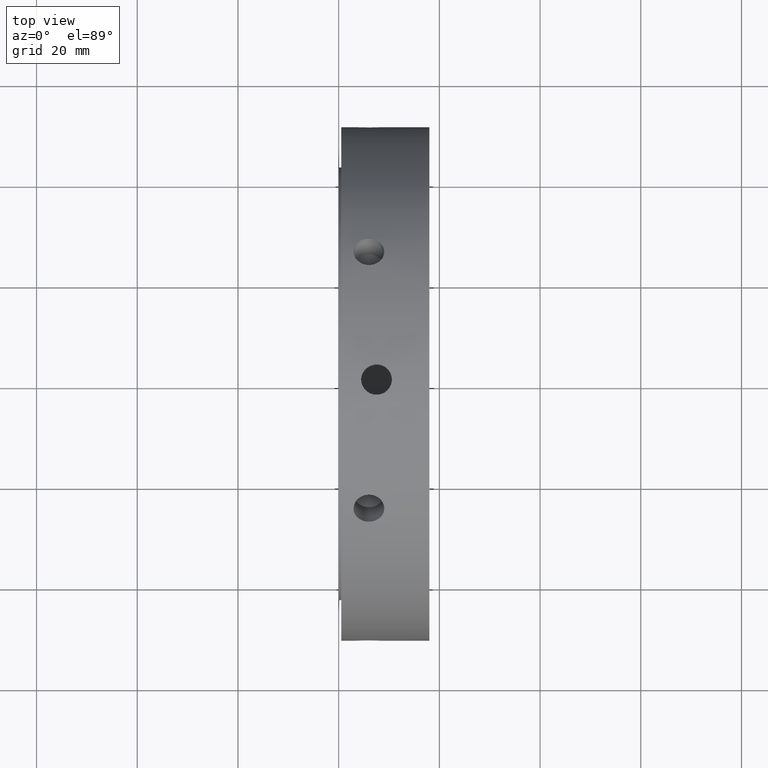
[diagram: clean part render]
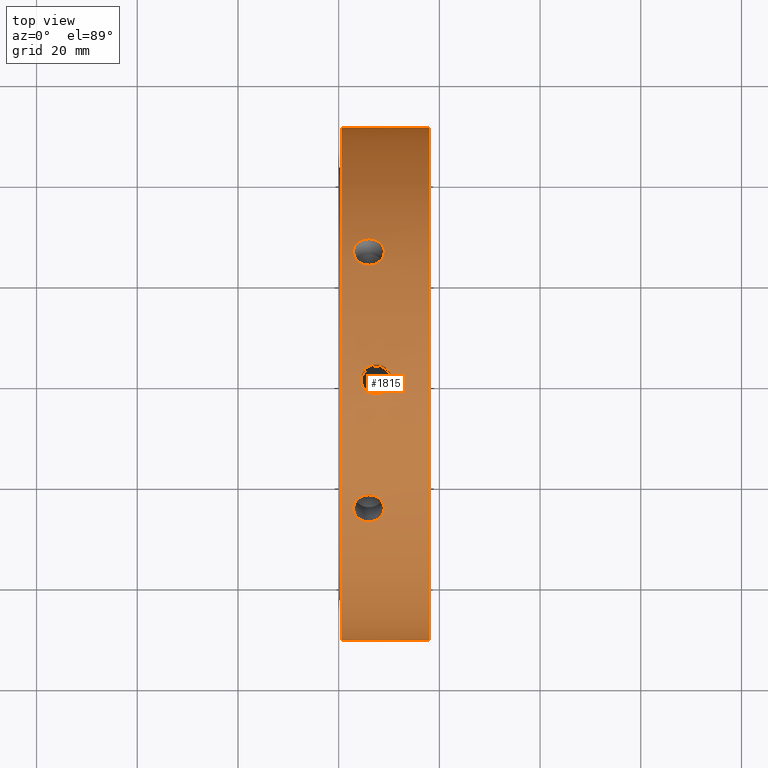
[diagram: same view with one face highlighted and labeled with its STEP entity id]
A machine part, top view. The second image highlights one B-rep face of the part: STEP entity #1815.
In plain terms, the highlighted cylindrical surface (bore or boss wall) has radius 51 mm, axis along (1, 0, 0).
Its self-contained STEP definition (entity closure, byte-faithful):
#534=CARTESIAN_POINT('',(2.949999999999988,25.500000000000046,44.167295593006351));
#535=VERTEX_POINT('',#534);
#536=CARTESIAN_POINT('',(9.049999999999987,25.50000000000005,44.167295593006351));
#537=VERTEX_POINT('',#536);
#538=CARTESIAN_POINT('',(2.949999999999988,25.500000000000043,44.167295593006351));
#539=CARTESIAN_POINT('',(2.949999999999988,25.831742092206099,43.975764206769661));
#540=CARTESIAN_POINT('',(3.026573888292848,26.183163011110935,43.76737609812119));
#541=CARTESIAN_POINT('',(3.337866047995538,26.825318756831944,43.376762320120505));
#542=CARTESIAN_POINT('',(3.572579263308811,27.116183112839359,43.194745601685355));
#543=CARTESIAN_POINT('',(4.114069488624895,27.573667949133934,42.904152131207724));
#544=CARTESIAN_POINT('',(4.456973716481083,27.770831251015345,42.776222735043881));
#545=CARTESIAN_POINT('',(5.208403624468287,28.031805414916722,42.605659073276421));
#546=CARTESIAN_POINT('',(5.616937061746627,28.095736145629946,42.563242480280365));
#547=CARTESIAN_POINT('',(6.383062938253348,28.095736145629946,42.563242480280365));
#548=CARTESIAN_POINT('',(6.791596375531684,28.031805414916722,42.605659073276421));
#549=CARTESIAN_POINT('',(7.54302628351889,27.770831251015345,42.776222735043881));
#550=CARTESIAN_POINT('',(7.885930511375078,27.573667949133934,42.904152131207724));
#551=CARTESIAN_POINT('',(8.427420736691161,27.116183112839359,43.194745601685355));
#552=CARTESIAN_POINT('',(8.662133952004437,26.825318756831944,43.376762320120505));
#553=CARTESIAN_POINT('',(8.973426111707127,26.183163011110935,43.76737609812119));
#554=CARTESIAN_POINT('',(9.049999999999987,25.831742092206099,43.975764206769661));
#555=CARTESIAN_POINT('',(9.049999999999987,25.500000000000043,44.167295593006351));
#556=B_SPLINE_CURVE_WITH_KNOTS('',3,(#538,#539,#540,#541,#542,#543,#544,#545,#546,#547,#548,#549,#550,#551,#552,#553,#554,#555),.UNSPECIFIED.,.F.,.U.,(4,2,2,2,2,2,2,2,4),(0.459675426436053,0.57459425817807,0.689513089920088,0.804431971396096,0.919350852872105,1.034269734348113,1.149188615824121,1.264107447566139,1.379026279308156),.UNSPECIFIED.);
#557=EDGE_CURVE('',#535,#537,#556,.T.);
#559=CARTESIAN_POINT('',(9.049999999999987,25.500000000000043,44.167295593006344));
#560=CARTESIAN_POINT('',(9.049999999999988,25.168257907793983,44.358826979243048));
#561=CARTESIAN_POINT('',(8.973426111707131,24.812078052405411,44.558972368111675));
#562=CARTESIAN_POINT('',(8.662133952004439,24.152718724728082,44.919788668091869));
#563=CARTESIAN_POINT('',(8.427420736691163,23.849655444646061,45.080676230232122));
#564=CARTESIAN_POINT('',(7.885930511375079,23.369251698891258,45.331572985070565));
#565=CARTESIAN_POINT('',(7.543026283518891,23.159879940981863,45.438356715111972));
#566=CARTESIAN_POINT('',(6.791596375531688,22.881680394978062,45.579085139898233));
#567=CARTESIAN_POINT('',(6.383062938253349,22.812981182544874,45.61324248028037));
#568=CARTESIAN_POINT('',(5.999999999999988,22.812981182544874,45.61324248028037));
#569=CARTESIAN_POINT('',(5.616937061746627,22.812981182544874,45.61324248028037));
#570=CARTESIAN_POINT('',(5.208403624468289,22.881680394978055,45.579085139898233));
#571=CARTESIAN_POINT('',(4.456973716481086,23.15987994098186,45.438356715111972));
#572=CARTESIAN_POINT('',(4.114069488624898,23.369251698891258,45.331572985070565));
#573=CARTESIAN_POINT('',(3.572579263308813,23.849655444646061,45.080676230232122));
#574=CARTESIAN_POINT('',(3.337866047995539,24.152718724728079,44.919788668091869));
#575=CARTESIAN_POINT('',(3.026573888292846,24.812078052405408,44.558972368111675));
#576=CARTESIAN_POINT('',(2.949999999999987,25.168257907793986,44.358826979243048));
#577=CARTESIAN_POINT('',(2.949999999999987,25.500000000000046,44.167295593006344));
#578=B_SPLINE_CURVE_WITH_KNOTS('',3,(#559,#560,#561,#562,#563,#564,#565,#566,#567,#568,#569,#570,#571,#572,#573,#574,#575,#576,#577),.UNSPECIFIED.,.F.,.U.,(4,2,2,2,3,2,2,2,4),(1.379026279308156,1.493945111050175,1.608863942792193,1.723782824268201,1.838701705744209,1.953620587220217,2.068539468696225,2.183458300438244,2.298377132180262),.UNSPECIFIED.);
#579=EDGE_CURVE('',#537,#535,#578,.T.);
#646=CARTESIAN_POINT('',(2.949999999999988,51.000000000000007,-3.397282E-014));
#647=VERTEX_POINT('',#646);
#648=CARTESIAN_POINT('',(9.049999999999987,51.000000000000007,-3.108624E-014));
#649=VERTEX_POINT('',#648);
#650=CARTESIAN_POINT('',(2.949999999999988,51.0,-2.838008E-014));
#651=CARTESIAN_POINT('',(2.949999999999988,51.0,-0.383062772473422));
#652=CARTESIAN_POINT('',(3.026573888292847,50.995241063516261,-0.791596269990509));
#653=CARTESIAN_POINT('',(3.337866047995539,50.978037481559959,-1.543026347971394));
#654=CARTESIAN_POINT('',(3.572579263308811,50.965838557485348,-1.885930628546793));
#655=CARTESIAN_POINT('',(4.114069488624896,50.942919648025118,-2.427420853862877));
#656=CARTESIAN_POINT('',(4.456973716481084,50.93071119199714,-2.662133980068119));
#657=CARTESIAN_POINT('',(5.208403624468288,50.913485809894709,-2.973426066621841));
#658=CARTESIAN_POINT('',(5.616937061746627,50.908717328174752,-3.050000000000028));
#659=CARTESIAN_POINT('',(6.383062938253348,50.908717328174752,-3.050000000000028));
#660=CARTESIAN_POINT('',(6.791596375531688,50.913485809894709,-2.973426066621841));
#661=CARTESIAN_POINT('',(7.543026283518891,50.93071119199714,-2.662133980068119));
#662=CARTESIAN_POINT('',(7.885930511375078,50.942919648025118,-2.427420853862877));
#663=CARTESIAN_POINT('',(8.427420736691163,50.965838557485348,-1.885930628546793));
#664=CARTESIAN_POINT('',(8.662133952004435,50.978037481559959,-1.543026347971394));
#665=CARTESIAN_POINT('',(8.973426111707127,50.995241063516261,-0.791596269990509));
#666=CARTESIAN_POINT('',(9.049999999999988,51.0,-0.383062772473423));
#667=CARTESIAN_POINT('',(9.049999999999988,51.0,-2.955969E-014));
#668=B_SPLINE_CURVE_WITH_KNOTS('',3,(#650,#651,#652,#653,#654,#655,#656,#657,#658,#659,#660,#661,#662,#663,#664,#665,#666,#667),.UNSPECIFIED.,.F.,.U.,(4,2,2,2,2,2,2,2,4),(0.459675426436052,0.57459425817807,0.689513089920088,0.804431971396096,0.919350852872105,1.034269734348113,1.149188615824121,1.264107447566139,1.379026279308157),.UNSPECIFIED.);
#669=EDGE_CURVE('',#647,#649,#668,.T.);
#671=CARTESIAN_POINT('',(9.049999999999988,51.0,-2.935152E-014));
#672=CARTESIAN_POINT('',(9.049999999999988,51.0,0.383062772473364));
#673=CARTESIAN_POINT('',(8.973426111707127,50.995241063516261,0.791596269990451));
#674=CARTESIAN_POINT('',(8.662133952004435,50.978037481559959,1.543026347971336));
#675=CARTESIAN_POINT('',(8.427420736691163,50.965838557485348,1.885930628546736));
#676=CARTESIAN_POINT('',(7.885930511375079,50.942919648025118,2.42742085386282));
#677=CARTESIAN_POINT('',(7.543026283518892,50.93071119199714,2.66213398006806));
#678=CARTESIAN_POINT('',(6.791596375531688,50.913485809894709,2.973426066621783));
#679=CARTESIAN_POINT('',(6.383062938253348,50.908717328174752,3.049999999999971));
#680=CARTESIAN_POINT('',(5.999999999999988,50.908717328174752,3.049999999999971));
#681=CARTESIAN_POINT('',(5.616937061746627,50.908717328174752,3.049999999999971));
#682=CARTESIAN_POINT('',(5.208403624468289,50.913485809894709,2.973426066621784));
#683=CARTESIAN_POINT('',(4.456973716481086,50.93071119199714,2.662133980068062));
#684=CARTESIAN_POINT('',(4.114069488624898,50.942919648025118,2.42742085386282));
#685=CARTESIAN_POINT('',(3.572579263308813,50.965838557485348,1.885930628546736));
#686=CARTESIAN_POINT('',(3.337866047995539,50.978037481559959,1.543026347971337));
#687=CARTESIAN_POINT('',(3.026573888292847,50.995241063516261,0.791596269990452));
#688=CARTESIAN_POINT('',(2.949999999999988,51.0,0.383062772473365));
#689=CARTESIAN_POINT('',(2.949999999999988,51.0,-2.831069E-014));
#690=B_SPLINE_CURVE_WITH_KNOTS('',3,(#671,#672,#673,#674,#675,#676,#677,#678,#679,#680,#681,#682,#683,#684,#685,#686,#687,#688,#689),.UNSPECIFIED.,.F.,.U.,(4,2,2,2,3,2,2,2,4),(1.379026279308157,1.493945111050175,1.608863942792193,1.723782824268201,1.838701705744209,1.953620587220217,2.068539468696225,2.183458300438244,2.298377132180261),.UNSPECIFIED.);
#691=EDGE_CURVE('',#649,#647,#690,.T.);
#758=CARTESIAN_POINT('',(2.949999999999988,25.499999999999993,-44.167295593006386));
#759=VERTEX_POINT('',#758);
#760=CARTESIAN_POINT('',(9.049999999999987,25.5,-44.167295593006386));
#761=VERTEX_POINT('',#760);
#762=CARTESIAN_POINT('',(2.949999999999988,25.5,-44.167295593006372));
#763=CARTESIAN_POINT('',(2.949999999999987,25.168257907793937,-44.358826979243069));
#764=CARTESIAN_POINT('',(3.026573888292847,24.812078052405372,-44.558972368111711));
#765=CARTESIAN_POINT('',(3.337866047995537,24.152718724728054,-44.919788668091904));
#766=CARTESIAN_POINT('',(3.572579263308813,23.849655444646022,-45.08067623023215));
#767=CARTESIAN_POINT('',(4.114069488624896,23.369251698891212,-45.331572985070601));
#768=CARTESIAN_POINT('',(4.456973716481082,23.159879940981817,-45.438356715111993));
#769=CARTESIAN_POINT('',(5.208403624468287,22.881680394978016,-45.579085139898254));
#770=CARTESIAN_POINT('',(5.616937061746627,22.812981182544831,-45.613242480280377));
#771=CARTESIAN_POINT('',(6.383062938253348,22.812981182544831,-45.613242480280377));
#772=CARTESIAN_POINT('',(6.791596375531687,22.881680394978016,-45.579085139898254));
#773=CARTESIAN_POINT('',(7.543026283518891,23.159879940981817,-45.438356715111993));
#774=CARTESIAN_POINT('',(7.88593051137508,23.369251698891212,-45.331572985070601));
#775=CARTESIAN_POINT('',(8.427420736691163,23.849655444646022,-45.080676230232143));
#776=CARTESIAN_POINT('',(8.662133952004442,24.152718724728057,-44.919788668091904));
#777=CARTESIAN_POINT('',(8.973426111707129,24.812078052405372,-44.558972368111711));
#778=CARTESIAN_POINT('',(9.049999999999988,25.168257907793937,-44.358826979243076));
#779=CARTESIAN_POINT('',(9.049999999999988,25.5,-44.167295593006379));
#780=B_SPLINE_CURVE_WITH_KNOTS('',3,(#762,#763,#764,#765,#766,#767,#768,#769,#770,#771,#772,#773,#774,#775,#776,#777,#778,#779),.UNSPECIFIED.,.F.,.U.,(4,2,2,2,2,2,2,2,4),(0.459675426436053,0.574594258178071,0.689513089920088,0.804431971396097,0.919350852872105,1.034269734348113,1.149188615824121,1.264107447566139,1.379026279308157),.UNSPECIFIED.);
#781=EDGE_CURVE('',#759,#761,#780,.T.);
#783=CARTESIAN_POINT('',(9.049999999999987,25.499999999999993,-44.167295593006379));
#784=CARTESIAN_POINT('',(9.049999999999987,25.831742092206053,-43.975764206769682));
#785=CARTESIAN_POINT('',(8.973426111707127,26.183163011110896,-43.767376098121211));
#786=CARTESIAN_POINT('',(8.662133952004435,26.825318756831905,-43.37676232012052));
#787=CARTESIAN_POINT('',(8.427420736691163,27.116183112839323,-43.194745601685383));
#788=CARTESIAN_POINT('',(7.885930511375077,27.573667949133906,-42.904152131207745));
#789=CARTESIAN_POINT('',(7.543026283518886,27.770831251015299,-42.776222735043909));
#790=CARTESIAN_POINT('',(6.791596375531682,28.031805414916672,-42.605659073276449));
#791=CARTESIAN_POINT('',(6.383062938253348,28.09573614562991,-42.56324248028038));
#792=CARTESIAN_POINT('',(5.999999999999988,28.09573614562991,-42.56324248028038));
#793=CARTESIAN_POINT('',(5.616937061746627,28.09573614562991,-42.56324248028038));
#794=CARTESIAN_POINT('',(5.208403624468291,28.031805414916668,-42.605659073276449));
#795=CARTESIAN_POINT('',(4.456973716481086,27.770831251015295,-42.776222735043909));
#796=CARTESIAN_POINT('',(4.114069488624898,27.573667949133899,-42.904152131207745));
#797=CARTESIAN_POINT('',(3.572579263308812,27.116183112839323,-43.194745601685383));
#798=CARTESIAN_POINT('',(3.337866047995539,26.825318756831898,-43.376762320120534));
#799=CARTESIAN_POINT('',(3.026573888292848,26.183163011110892,-43.767376098121218));
#800=CARTESIAN_POINT('',(2.949999999999988,25.831742092206053,-43.975764206769682));
#801=CARTESIAN_POINT('',(2.949999999999988,25.499999999999993,-44.167295593006379));
#802=B_SPLINE_CURVE_WITH_KNOTS('',3,(#783,#784,#785,#786,#787,#788,#789,#790,#791,#792,#793,#794,#795,#796,#797,#798,#799,#800,#801),.UNSPECIFIED.,.F.,.U.,(4,2,2,2,3,2,2,2,4),(1.379026279308157,1.493945111050175,1.608863942792193,1.723782824268202,1.83870170574421,1.953620587220218,2.068539468696226,2.183458300438244,2.298377132180262),.UNSPECIFIED.);
#803=EDGE_CURVE('',#761,#759,#802,.T.);
#870=CARTESIAN_POINT('',(2.949999999999988,-25.500000000000014,-44.167295593006358));
#871=VERTEX_POINT('',#870);
#872=CARTESIAN_POINT('',(9.049999999999987,-25.500000000000021,-44.167295593006358));
#873=VERTEX_POINT('',#872);
#874=CARTESIAN_POINT('',(2.949999999999988,-25.500000000000014,-44.167295593006372));
#875=CARTESIAN_POINT('',(2.949999999999988,-25.831742092206071,-43.975764206769668));
#876=CARTESIAN_POINT('',(3.026573888292845,-26.183163011110906,-43.767376098121211));
#877=CARTESIAN_POINT('',(3.337866047995537,-26.825318756831923,-43.37676232012052));
#878=CARTESIAN_POINT('',(3.572579263308811,-27.116183112839344,-43.194745601685369));
#879=CARTESIAN_POINT('',(4.114069488624896,-27.573667949133917,-42.904152131207738));
#880=CARTESIAN_POINT('',(4.456973716481084,-27.770831251015323,-42.776222735043888));
#881=CARTESIAN_POINT('',(5.208403624468288,-28.0318054149167,-42.605659073276428));
#882=CARTESIAN_POINT('',(5.616937061746627,-28.095736145629928,-42.56324248028038));
#883=CARTESIAN_POINT('',(6.383062938253348,-28.095736145629928,-42.56324248028038));
#884=CARTESIAN_POINT('',(6.791596375531684,-28.0318054149167,-42.605659073276428));
#885=CARTESIAN_POINT('',(7.54302628351889,-27.770831251015323,-42.776222735043888));
#886=CARTESIAN_POINT('',(7.885930511375078,-27.573667949133917,-42.904152131207738));
#887=CARTESIAN_POINT('',(8.427420736691163,-27.116183112839344,-43.194745601685369));
#888=CARTESIAN_POINT('',(8.662133952004433,-26.825318756831926,-43.37676232012052));
#889=CARTESIAN_POINT('',(8.973426111707125,-26.183163011110913,-43.767376098121211));
#890=CARTESIAN_POINT('',(9.049999999999988,-25.831742092206067,-43.975764206769668));
#891=CARTESIAN_POINT('',(9.049999999999988,-25.500000000000011,-44.167295593006372));
#892=B_SPLINE_CURVE_WITH_KNOTS('',3,(#874,#875,#876,#877,#878,#879,#880,#881,#882,#883,#884,#885,#886,#887,#888,#889,#890,#891),.UNSPECIFIED.,.F.,.U.,(4,2,2,2,2,2,2,2,4),(0.459675426436052,0.57459425817807,0.689513089920088,0.804431971396096,0.919350852872104,1.034269734348112,1.14918861582412,1.264107447566139,1.379026279308157),.UNSPECIFIED.);
#893=EDGE_CURVE('',#871,#873,#892,.T.);
#895=CARTESIAN_POINT('',(9.049999999999987,-25.500000000000014,-44.167295593006372));
#896=CARTESIAN_POINT('',(9.049999999999987,-25.168257907793961,-44.358826979243069));
#897=CARTESIAN_POINT('',(8.973426111707125,-24.812078052405386,-44.558972368111689));
#898=CARTESIAN_POINT('',(8.662133952004435,-24.152718724728068,-44.919788668091883));
#899=CARTESIAN_POINT('',(8.427420736691163,-23.849655444646043,-45.080676230232143));
#900=CARTESIAN_POINT('',(7.885930511375079,-23.36925169889124,-45.331572985070579));
#901=CARTESIAN_POINT('',(7.543026283518893,-23.159879940981838,-45.438356715111979));
#902=CARTESIAN_POINT('',(6.791596375531689,-22.881680394978041,-45.57908513989824));
#903=CARTESIAN_POINT('',(6.383062938253348,-22.81298118254486,-45.613242480280377));
#904=CARTESIAN_POINT('',(5.999999999999988,-22.81298118254486,-45.613242480280377));
#905=CARTESIAN_POINT('',(5.616937061746627,-22.81298118254486,-45.613242480280377));
#906=CARTESIAN_POINT('',(5.208403624468287,-22.881680394978041,-45.57908513989824));
#907=CARTESIAN_POINT('',(4.456973716481082,-23.159879940981838,-45.438356715111979));
#908=CARTESIAN_POINT('',(4.114069488624896,-23.36925169889124,-45.331572985070579));
#909=CARTESIAN_POINT('',(3.572579263308813,-23.849655444646039,-45.080676230232143));
#910=CARTESIAN_POINT('',(3.337866047995539,-24.152718724728068,-44.919788668091883));
#911=CARTESIAN_POINT('',(3.026573888292847,-24.81207805240539,-44.558972368111689));
#912=CARTESIAN_POINT('',(2.949999999999989,-25.168257907793961,-44.358826979243069));
#913=CARTESIAN_POINT('',(2.949999999999989,-25.500000000000014,-44.167295593006372));
#914=B_SPLINE_CURVE_WITH_KNOTS('',3,(#895,#896,#897,#898,#899,#900,#901,#902,#903,#904,#905,#906,#907,#908,#909,#910,#911,#912,#913),.UNSPECIFIED.,.F.,.U.,(4,2,2,2,3,2,2,2,4),(1.379026279308157,1.493945111050174,1.608863942792192,1.7237828242682,1.838701705744208,1.953620587220216,2.068539468696224,2.183458300438242,2.29837713218026),.UNSPECIFIED.);
#915=EDGE_CURVE('',#873,#871,#914,.T.);
#982=CARTESIAN_POINT('',(2.949999999999988,-51.000000000000007,1.415534E-014));
#983=VERTEX_POINT('',#982);
#984=CARTESIAN_POINT('',(9.049999999999987,-51.000000000000007,1.332268E-014));
#985=VERTEX_POINT('',#984);
#986=CARTESIAN_POINT('',(2.949999999999988,-51.0,9.228729E-015));
#987=CARTESIAN_POINT('',(2.949999999999988,-51.0,0.383062772473403));
#988=CARTESIAN_POINT('',(3.026573888292847,-50.995241063516261,0.79159626999049));
#989=CARTESIAN_POINT('',(3.337866047995539,-50.978037481559959,1.543026347971375));
#990=CARTESIAN_POINT('',(3.572579263308811,-50.965838557485348,1.885930628546774));
#991=CARTESIAN_POINT('',(4.114069488624896,-50.942919648025118,2.427420853862859));
#992=CARTESIAN_POINT('',(4.456973716481084,-50.93071119199714,2.6621339800681));
#993=CARTESIAN_POINT('',(5.208403624468288,-50.913485809894709,2.973426066621822));
#994=CARTESIAN_POINT('',(5.616937061746627,-50.908717328174752,3.05000000000001));
#995=CARTESIAN_POINT('',(6.383062938253348,-50.908717328174752,3.05000000000001));
#996=CARTESIAN_POINT('',(6.791596375531688,-50.913485809894709,2.973426066621821));
#997=CARTESIAN_POINT('',(7.543026283518891,-50.93071119199714,2.662133980068099));
#998=CARTESIAN_POINT('',(7.885930511375078,-50.942919648025118,2.427420853862859));
#999=CARTESIAN_POINT('',(8.427420736691163,-50.965838557485348,1.885930628546775));
#1000=CARTESIAN_POINT('',(8.662133952004435,-50.978037481559959,1.543026347971376));
#1001=CARTESIAN_POINT('',(8.973426111707127,-50.995241063516261,0.79159626999049));
#1002=CARTESIAN_POINT('',(9.049999999999988,-51.0,0.383062772473404));
#1003=CARTESIAN_POINT('',(9.049999999999988,-51.0,1.040834E-014));
#1004=B_SPLINE_CURVE_WITH_KNOTS('',3,(#986,#987,#988,#989,#990,#991,#992,#993,#994,#995,#996,#997,#998,#999,#1000,#1001,#1002,#1003),.UNSPECIFIED.,.F.,.U.,(4,2,2,2,2,2,2,2,4),(0.459675426436052,0.57459425817807,0.689513089920088,0.804431971396096,0.919350852872105,1.034269734348113,1.149188615824121,1.264107447566139,1.379026279308157),.UNSPECIFIED.);
#1005=EDGE_CURVE('',#983,#985,#1004,.T.);
#1007=CARTESIAN_POINT('',(9.049999999999988,-51.0,1.033895E-014));
#1008=CARTESIAN_POINT('',(9.049999999999988,-51.0,-0.383062772473383));
#1009=CARTESIAN_POINT('',(8.973426111707127,-50.995241063516261,-0.79159626999047));
#1010=CARTESIAN_POINT('',(8.662133952004435,-50.978037481559959,-1.543026347971355));
#1011=CARTESIAN_POINT('',(8.427420736691163,-50.965838557485348,-1.885930628546754));
#1012=CARTESIAN_POINT('',(7.885930511375079,-50.942919648025118,-2.427420853862839));
#1013=CARTESIAN_POINT('',(7.543026283518892,-50.93071119199714,-2.66213398006808));
#1014=CARTESIAN_POINT('',(6.791596375531688,-50.913485809894709,-2.973426066621802));
#1015=CARTESIAN_POINT('',(6.383062938253348,-50.908717328174752,-3.049999999999991));
#1016=CARTESIAN_POINT('',(5.999999999999988,-50.908717328174752,-3.049999999999991));
#1017=CARTESIAN_POINT('',(5.616937061746627,-50.908717328174752,-3.049999999999991));
#1018=CARTESIAN_POINT('',(5.208403624468289,-50.913485809894709,-2.973426066621803));
#1019=CARTESIAN_POINT('',(4.456973716481086,-50.93071119199714,-2.662133980068082));
#1020=CARTESIAN_POINT('',(4.114069488624898,-50.942919648025118,-2.427420853862839));
#1021=CARTESIAN_POINT('',(3.572579263308813,-50.965838557485348,-1.885930628546755));
#1022=CARTESIAN_POINT('',(3.337866047995539,-50.978037481559959,-1.543026347971356));
#1023=CARTESIAN_POINT('',(3.026573888292847,-50.995241063516261,-0.79159626999047));
#1024=CARTESIAN_POINT('',(2.949999999999988,-51.0,-0.383062772473384));
#1025=CARTESIAN_POINT('',(2.949999999999988,-51.0,9.436896E-015));
#1026=B_SPLINE_CURVE_WITH_KNOTS('',3,(#1007,#1008,#1009,#1010,#1011,#1012,#1013,#1014,#1015,#1016,#1017,#1018,#1019,#1020,#1021,#1022,#1023,#1024,#1025),.UNSPECIFIED.,.F.,.U.,(4,2,2,2,3,2,2,2,4),(1.379026279308157,1.493945111050175,1.608863942792193,1.723782824268201,1.838701705744209,1.953620587220217,2.068539468696225,2.183458300438244,2.298377132180261),.UNSPECIFIED.);
#1027=EDGE_CURVE('',#985,#983,#1026,.T.);
#1131=CARTESIAN_POINT('',(2.949999999999988,-25.5,44.167295593006379));
#1132=VERTEX_POINT('',#1131);
#1133=CARTESIAN_POINT('',(9.049999999999987,-25.5,44.167295593006379));
#1134=VERTEX_POINT('',#1133);
#1135=CARTESIAN_POINT('',(2.949999999999988,-25.500000000000004,44.167295593006372));
#1136=CARTESIAN_POINT('',(2.949999999999988,-25.168257907793947,44.358826979243069));
#1137=CARTESIAN_POINT('',(3.026573888292847,-24.812078052405372,44.558972368111711));
#1138=CARTESIAN_POINT('',(3.337866047995539,-24.152718724728047,44.919788668091904));
#1139=CARTESIAN_POINT('',(3.572579263308813,-23.849655444646025,45.08067623023215));
#1140=CARTESIAN_POINT('',(4.114069488624896,-23.369251698891222,45.331572985070601));
#1141=CARTESIAN_POINT('',(4.456973716481086,-23.159879940981824,45.438356715111993));
#1142=CARTESIAN_POINT('',(5.208403624468288,-22.881680394978019,45.579085139898254));
#1143=CARTESIAN_POINT('',(5.616937061746627,-22.812981182544835,45.613242480280391));
#1144=CARTESIAN_POINT('',(6.383062938253347,-22.812981182544835,45.613242480280391));
#1145=CARTESIAN_POINT('',(6.791596375531684,-22.881680394978012,45.579085139898254));
#1146=CARTESIAN_POINT('',(7.543026283518887,-23.159879940981813,45.438356715111993));
#1147=CARTESIAN_POINT('',(7.885930511375076,-23.369251698891212,45.331572985070601));
#1148=CARTESIAN_POINT('',(8.427420736691161,-23.849655444646018,45.080676230232157));
#1149=CARTESIAN_POINT('',(8.662133952004435,-24.152718724728039,44.919788668091904));
#1150=CARTESIAN_POINT('',(8.973426111707127,-24.812078052405365,44.558972368111711));
#1151=CARTESIAN_POINT('',(9.049999999999987,-25.168257907793933,44.358826979243076));
#1152=CARTESIAN_POINT('',(9.049999999999987,-25.499999999999993,44.167295593006379));
#1153=B_SPLINE_CURVE_WITH_KNOTS('',3,(#1135,#1136,#1137,#1138,#1139,#1140,#1141,#1142,#1143,#1144,#1145,#1146,#1147,#1148,#1149,#1150,#1151,#1152),.UNSPECIFIED.,.F.,.U.,(4,2,2,2,2,2,2,2,4),(0.459675426436052,0.57459425817807,0.689513089920088,0.804431971396096,0.919350852872104,1.034269734348112,1.14918861582412,1.264107447566139,1.379026279308157),.UNSPECIFIED.);
#1154=EDGE_CURVE('',#1132,#1134,#1153,.T.);
#1156=CARTESIAN_POINT('',(9.049999999999987,-25.5,44.167295593006379));
#1157=CARTESIAN_POINT('',(9.049999999999987,-25.831742092206056,43.975764206769682));
#1158=CARTESIAN_POINT('',(8.973426111707131,-26.183163011110882,43.767376098121233));
#1159=CARTESIAN_POINT('',(8.662133952004442,-26.825318756831898,43.376762320120541));
#1160=CARTESIAN_POINT('',(8.427420736691163,-27.11618311283932,43.194745601685383));
#1161=CARTESIAN_POINT('',(7.885930511375079,-27.573667949133895,42.904152131207752));
#1162=CARTESIAN_POINT('',(7.543026283518892,-27.770831251015302,42.776222735043909));
#1163=CARTESIAN_POINT('',(6.791596375531688,-28.031805414916676,42.605659073276449));
#1164=CARTESIAN_POINT('',(6.383062938253349,-28.09573614562991,42.56324248028038));
#1165=CARTESIAN_POINT('',(5.999999999999988,-28.09573614562991,42.563242480280394));
#1166=CARTESIAN_POINT('',(5.616937061746627,-28.09573614562991,42.563242480280394));
#1167=CARTESIAN_POINT('',(5.208403624468288,-28.031805414916676,42.605659073276449));
#1168=CARTESIAN_POINT('',(4.456973716481082,-27.770831251015302,42.776222735043909));
#1169=CARTESIAN_POINT('',(4.114069488624898,-27.573667949133899,42.904152131207745));
#1170=CARTESIAN_POINT('',(3.572579263308812,-27.116183112839323,43.194745601685376));
#1171=CARTESIAN_POINT('',(3.337866047995539,-26.825318756831898,43.37676232012052));
#1172=CARTESIAN_POINT('',(3.026573888292846,-26.183163011110885,43.767376098121211));
#1173=CARTESIAN_POINT('',(2.949999999999988,-25.831742092206049,43.975764206769682));
#1174=CARTESIAN_POINT('',(2.949999999999988,-25.499999999999993,44.167295593006379));
#1175=B_SPLINE_CURVE_WITH_KNOTS('',3,(#1156,#1157,#1158,#1159,#1160,#1161,#1162,#1163,#1164,#1165,#1166,#1167,#1168,#1169,#1170,#1171,#1172,#1173,#1174),.UNSPECIFIED.,.F.,.U.,(4,2,2,2,3,2,2,2,4),(1.379026279308157,1.493945111050175,1.608863942792193,1.723782824268201,1.838701705744209,1.953620587220217,2.068539468696225,2.183458300438244,2.298377132180262),.UNSPECIFIED.);
#1176=EDGE_CURVE('',#1134,#1132,#1175,.T.);
#1255=CARTESIAN_POINT('',(7.499999999999987,45.613242480280377,-22.812981182544867));
#1256=VERTEX_POINT('',#1255);
#1257=CARTESIAN_POINT('',(7.499999999999986,45.613242480280377,-22.812981182544853));
#1258=CARTESIAN_POINT('',(7.116937061746624,45.613242480280377,-22.812981182544853));
#1259=CARTESIAN_POINT('',(6.708403624468283,45.579085139898233,-22.881680394978044));
#1260=CARTESIAN_POINT('',(5.956973716481079,45.438356715111972,-23.159879940981845));
#1261=CARTESIAN_POINT('',(5.614069488624893,45.331572985070579,-23.36925169889124));
#1262=CARTESIAN_POINT('',(5.072579263308811,45.080676230232122,-23.849655444646043));
#1263=CARTESIAN_POINT('',(4.837866047995531,44.919788668091876,-24.152718724728071));
#1264=CARTESIAN_POINT('',(4.526573888292841,44.558972368111682,-24.812078052405397));
#1265=CARTESIAN_POINT('',(4.449999999999985,44.358826979243055,-25.168257907793965));
#1266=CARTESIAN_POINT('',(4.449999999999989,43.975764206769661,-25.831742092206081));
#1267=CARTESIAN_POINT('',(4.526573888292846,43.767376098121211,-26.183163011110913));
#1268=CARTESIAN_POINT('',(4.837866047995536,43.37676232012052,-26.825318756831923));
#1269=CARTESIAN_POINT('',(5.072579263308813,43.194745601685369,-27.116183112839344));
#1270=CARTESIAN_POINT('',(5.614069488624897,42.904152131207738,-27.573667949133917));
#1271=CARTESIAN_POINT('',(5.956973716481081,42.776222735043888,-27.770831251015323));
#1272=CARTESIAN_POINT('',(6.708403624468289,42.605659073276428,-28.0318054149167));
#1273=CARTESIAN_POINT('',(7.116937061746627,42.563242480280373,-28.095736145629932));
#1274=CARTESIAN_POINT('',(7.883062938253347,42.563242480280373,-28.095736145629932));
#1275=CARTESIAN_POINT('',(8.291596375531682,42.605659073276421,-28.0318054149167));
#1276=CARTESIAN_POINT('',(9.04302628351889,42.776222735043881,-27.770831251015323));
#1277=CARTESIAN_POINT('',(9.385930511375076,42.904152131207738,-27.573667949133913));
#1278=CARTESIAN_POINT('',(9.927420736691158,43.194745601685369,-27.116183112839344));
#1279=CARTESIAN_POINT('',(10.162133952004437,43.37676232012052,-26.825318756831923));
#1280=CARTESIAN_POINT('',(10.473426111707129,43.767376098121211,-26.183163011110906));
#1281=CARTESIAN_POINT('',(10.549999999999983,43.975764206769661,-25.831742092206081));
#1282=CARTESIAN_POINT('',(10.549999999999988,44.358826979243055,-25.168257907793965));
#1283=CARTESIAN_POINT('',(10.473426111707131,44.558972368111682,-24.812078052405401));
#1284=CARTESIAN_POINT('',(10.162133952004446,44.919788668091876,-24.152718724728079));
#1285=CARTESIAN_POINT('',(9.927420736691163,45.080676230232122,-23.849655444646046));
#1286=CARTESIAN_POINT('',(9.385930511375079,45.331572985070579,-23.36925169889124));
#1287=CARTESIAN_POINT('',(9.043026283518895,45.438356715111972,-23.159879940981845));
#1288=CARTESIAN_POINT('',(8.29159637553169,45.579085139898233,-22.881680394978044));
#1289=CARTESIAN_POINT('',(7.883062938253348,45.613242480280377,-22.812981182544853));
#1290=CARTESIAN_POINT('',(7.499999999999987,45.613242480280377,-22.812981182544853));
#1291=B_SPLINE_CURVE_WITH_KNOTS('',3,(#1257,#1258,#1259,#1260,#1261,#1262,#1263,#1264,#1265,#1266,#1267,#1268,#1269,#1270,#1271,#1272,#1273,#1274,#1275,#1276,#1277,#1278,#1279,#1280,#1281,#1282,#1283,#1284,#1285,#1286,#1287,#1288,#1289,#1290),.UNSPECIFIED.,.T.,.U.,(4,2,2,2,2,2,2,2,2,2,2,2,2,2,2,2,4),(0.0,0.114918881476008,0.229837762952017,0.344756594694035,0.459675426436052,0.57459425817807,0.689513089920087,0.804431971396096,0.919350852872104,1.034269734348112,1.14918861582412,1.264107447566138,1.379026279308155,1.493945111050173,1.608863942792191,1.723782824268199,1.838701705744208),.UNSPECIFIED.);
#1292=EDGE_CURVE('',#1256,#1256,#1291,.T.);
#1412=CARTESIAN_POINT('',(7.499999999999987,-42.563242480280401,-28.095736145629907));
#1413=VERTEX_POINT('',#1412);
#1414=CARTESIAN_POINT('',(7.499999999999987,-42.563242480280401,-28.095736145629907));
#1415=CARTESIAN_POINT('',(7.116937061746627,-42.563242480280401,-28.095736145629907));
#1416=CARTESIAN_POINT('',(6.708403624468287,-42.605659073276449,-28.031805414916672));
#1417=CARTESIAN_POINT('',(5.956973716481081,-42.776222735043909,-27.770831251015299));
#1418=CARTESIAN_POINT('',(5.614069488624896,-42.904152131207745,-27.573667949133885));
#1419=CARTESIAN_POINT('',(5.072579263308812,-43.194745601685383,-27.116183112839312));
#1420=CARTESIAN_POINT('',(4.837866047995537,-43.376762320120534,-26.825318756831894));
#1421=CARTESIAN_POINT('',(4.526573888292847,-43.767376098121218,-26.183163011110885));
#1422=CARTESIAN_POINT('',(4.449999999999987,-43.975764206769682,-25.831742092206049));
#1423=CARTESIAN_POINT('',(4.449999999999987,-44.358826979243076,-25.168257907793937));
#1424=CARTESIAN_POINT('',(4.526573888292848,-44.558972368111711,-24.812078052405369));
#1425=CARTESIAN_POINT('',(4.837866047995537,-44.919788668091904,-24.152718724728047));
#1426=CARTESIAN_POINT('',(5.072579263308812,-45.080676230232143,-23.849655444646018));
#1427=CARTESIAN_POINT('',(5.614069488624896,-45.331572985070579,-23.369251698891212));
#1428=CARTESIAN_POINT('',(5.956973716481083,-45.438356715112,-23.159879940981824));
#1429=CARTESIAN_POINT('',(6.708403624468287,-45.579085139898261,-22.881680394978019));
#1430=CARTESIAN_POINT('',(7.116937061746626,-45.613242480280398,-22.812981182544828));
#1431=CARTESIAN_POINT('',(7.883062938253347,-45.613242480280398,-22.812981182544828));
#1432=CARTESIAN_POINT('',(8.291596375531684,-45.579085139898261,-22.881680394978016));
#1433=CARTESIAN_POINT('',(9.04302628351889,-45.438356715112,-23.159879940981817));
#1434=CARTESIAN_POINT('',(9.385930511375074,-45.331572985070579,-23.369251698891212));
#1435=CARTESIAN_POINT('',(9.927420736691158,-45.080676230232143,-23.849655444646018));
#1436=CARTESIAN_POINT('',(10.162133952004435,-44.919788668091897,-24.152718724728036));
#1437=CARTESIAN_POINT('',(10.473426111707123,-44.558972368111696,-24.812078052405354));
#1438=CARTESIAN_POINT('',(10.549999999999986,-44.358826979243076,-25.168257907793937));
#1439=CARTESIAN_POINT('',(10.549999999999986,-43.975764206769682,-25.831742092206049));
#1440=CARTESIAN_POINT('',(10.473426111707127,-43.767376098121218,-26.183163011110882));
#1441=CARTESIAN_POINT('',(10.162133952004437,-43.376762320120534,-26.825318756831894));
#1442=CARTESIAN_POINT('',(9.927420736691165,-43.194745601685383,-27.116183112839312));
#1443=CARTESIAN_POINT('',(9.385930511375079,-42.904152131207745,-27.573667949133885));
#1444=CARTESIAN_POINT('',(9.04302628351889,-42.776222735043909,-27.770831251015302));
#1445=CARTESIAN_POINT('',(8.291596375531684,-42.605659073276449,-28.031805414916676));
#1446=CARTESIAN_POINT('',(7.883062938253347,-42.563242480280401,-28.095736145629907));
#1447=CARTESIAN_POINT('',(7.499999999999987,-42.563242480280401,-28.095736145629907));
#1448=B_SPLINE_CURVE_WITH_KNOTS('',3,(#1414,#1415,#1416,#1417,#1418,#1419,#1420,#1421,#1422,#1423,#1424,#1425,#1426,#1427,#1428,#1429,#1430,#1431,#1432,#1433,#1434,#1435,#1436,#1437,#1438,#1439,#1440,#1441,#1442,#1443,#1444,#1445,#1446,#1447),.UNSPECIFIED.,.T.,.U.,(4,2,2,2,2,2,2,2,2,2,2,2,2,2,2,2,4),(0.0,0.114918881476008,0.229837762952016,0.344756594694034,0.459675426436052,0.57459425817807,0.689513089920087,0.804431971396096,0.919350852872104,1.034269734348112,1.149188615824121,1.264107447566139,1.379026279308156,1.493945111050174,1.608863942792192,1.7237828242682,1.838701705744209),.UNSPECIFIED.);
#1449=EDGE_CURVE('',#1413,#1413,#1448,.T.);
#1569=CARTESIAN_POINT('',(7.499999999999987,-3.05,50.908717328174752));
#1570=VERTEX_POINT('',#1569);
#1571=CARTESIAN_POINT('',(7.499999999999987,-3.05,50.908717328174752));
#1572=CARTESIAN_POINT('',(7.116937061746627,-3.05,50.908717328174752));
#1573=CARTESIAN_POINT('',(6.708403624468287,-2.973426066621812,50.913485809894709));
#1574=CARTESIAN_POINT('',(5.956973716481083,-2.66213398006809,50.93071119199714));
#1575=CARTESIAN_POINT('',(5.614069488624897,-2.427420853862849,50.942919648025118));
#1576=CARTESIAN_POINT('',(5.072579263308812,-1.885930628546765,50.965838557485348));
#1577=CARTESIAN_POINT('',(4.837866047995537,-1.543026347971366,50.978037481559959));
#1578=CARTESIAN_POINT('',(4.526573888292846,-0.791596269990481,50.995241063516261));
#1579=CARTESIAN_POINT('',(4.449999999999987,-0.383062772473394,51.000000000000007));
#1580=CARTESIAN_POINT('',(4.449999999999987,0.383062772473393,51.000000000000007));
#1581=CARTESIAN_POINT('',(4.526573888292846,0.79159626999048,50.995241063516261));
#1582=CARTESIAN_POINT('',(4.837866047995537,1.543026347971366,50.978037481559959));
#1583=CARTESIAN_POINT('',(5.072579263308811,1.885930628546765,50.965838557485348));
#1584=CARTESIAN_POINT('',(5.614069488624896,2.427420853862849,50.942919648025118));
#1585=CARTESIAN_POINT('',(5.956973716481082,2.66213398006809,50.93071119199714));
#1586=CARTESIAN_POINT('',(6.708403624468287,2.973426066621812,50.913485809894709));
#1587=CARTESIAN_POINT('',(7.116937061746627,3.05,50.908717328174752));
#1588=CARTESIAN_POINT('',(7.883062938253347,3.05,50.908717328174752));
#1589=CARTESIAN_POINT('',(8.291596375531686,2.973426066621812,50.913485809894709));
#1590=CARTESIAN_POINT('',(9.043026283518891,2.66213398006809,50.93071119199714));
#1591=CARTESIAN_POINT('',(9.385930511375078,2.427420853862849,50.942919648025118));
#1592=CARTESIAN_POINT('',(9.927420736691161,1.885930628546765,50.965838557485348));
#1593=CARTESIAN_POINT('',(10.162133952004435,1.543026347971366,50.978037481559959));
#1594=CARTESIAN_POINT('',(10.473426111707127,0.79159626999048,50.995241063516261));
#1595=CARTESIAN_POINT('',(10.549999999999986,0.383062772473394,51.000000000000007));
#1596=CARTESIAN_POINT('',(10.549999999999986,-0.383062772473392,51.000000000000007));
#1597=CARTESIAN_POINT('',(10.473426111707127,-0.791596269990479,50.995241063516261));
#1598=CARTESIAN_POINT('',(10.162133952004435,-1.543026347971365,50.978037481559959));
#1599=CARTESIAN_POINT('',(9.927420736691161,-1.885930628546764,50.965838557485348));
#1600=CARTESIAN_POINT('',(9.385930511375078,-2.427420853862849,50.942919648025118));
#1601=CARTESIAN_POINT('',(9.043026283518891,-2.662133980068089,50.93071119199714));
#1602=CARTESIAN_POINT('',(8.291596375531688,-2.973426066621812,50.913485809894709));
#1603=CARTESIAN_POINT('',(7.883062938253347,-3.05,50.908717328174752));
#1604=CARTESIAN_POINT('',(7.499999999999987,-3.05,50.908717328174752));
#1605=B_SPLINE_CURVE_WITH_KNOTS('',3,(#1571,#1572,#1573,#1574,#1575,#1576,#1577,#1578,#1579,#1580,#1581,#1582,#1583,#1584,#1585,#1586,#1587,#1588,#1589,#1590,#1591,#1592,#1593,#1594,#1595,#1596,#1597,#1598,#1599,#1600,#1601,#1602,#1603,#1604),.UNSPECIFIED.,.T.,.U.,(4,2,2,2,2,2,2,2,2,2,2,2,2,2,2,2,4),(0.0,0.114918881476008,0.229837762952016,0.344756594694034,0.459675426436052,0.57459425817807,0.689513089920088,0.804431971396096,0.919350852872105,1.034269734348113,1.149188615824121,1.264107447566139,1.379026279308157,1.493945111050175,1.608863942792193,1.723782824268201,1.838701705744209),.UNSPECIFIED.);
#1606=EDGE_CURVE('',#1570,#1570,#1605,.T.);
#1748=CARTESIAN_POINT('',(0.499999999999985,51.000000000000007,0.0));
#1749=VERTEX_POINT('',#1748);
#1750=CARTESIAN_POINT('',(0.499999999999985,0.0,0.0));
#1751=DIRECTION('',(1.0,0.0,0.0));
#1752=DIRECTION('',(0.0,1.0,0.0));
#1753=AXIS2_PLACEMENT_3D('',#1750,#1751,#1752);
#1754=CIRCLE('',#1753,51.000000000000007);
#1755=EDGE_CURVE('',#1749,#1749,#1754,.T.);
#1763=CARTESIAN_POINT('',(9.249999999999988,0.0,0.0));
#1764=DIRECTION('',(1.0,0.0,0.0));
#1765=DIRECTION('',(0.0,1.0,0.0));
#1766=AXIS2_PLACEMENT_3D('',#1763,#1764,#1765);
#1767=CYLINDRICAL_SURFACE('',#1766,51.000000000000007);
#1768=CARTESIAN_POINT('',(17.999999999999989,51.000000000000007,0.0));
#1769=VERTEX_POINT('',#1768);
#1770=CARTESIAN_POINT('',(17.999999999999989,0.0,0.0));
#1771=DIRECTION('',(1.0,0.0,0.0));
#1772=DIRECTION('',(0.0,1.0,0.0));
#1773=AXIS2_PLACEMENT_3D('',#1770,#1771,#1772);
#1774=CIRCLE('',#1773,51.000000000000007);
#1775=EDGE_CURVE('',#1769,#1769,#1774,.T.);
#1776=ORIENTED_EDGE('',*,*,#1775,.F.);
#1777=EDGE_LOOP('',(#1776));
#1778=FACE_OUTER_BOUND('',#1777,.T.);
#1779=ORIENTED_EDGE('',*,*,#557,.T.);
#1780=ORIENTED_EDGE('',*,*,#579,.T.);
#1781=EDGE_LOOP('',(#1779,#1780));
#1782=FACE_BOUND('',#1781,.T.);
#1783=ORIENTED_EDGE('',*,*,#669,.T.);
#1784=ORIENTED_EDGE('',*,*,#691,.T.);
#1785=EDGE_LOOP('',(#1783,#1784));
#1786=FACE_BOUND('',#1785,.T.);
#1787=ORIENTED_EDGE('',*,*,#781,.T.);
#1788=ORIENTED_EDGE('',*,*,#803,.T.);
#1789=EDGE_LOOP('',(#1787,#1788));
#1790=FACE_BOUND('',#1789,.T.);
#1791=ORIENTED_EDGE('',*,*,#893,.T.);
#1792=ORIENTED_EDGE('',*,*,#915,.T.);
#1793=EDGE_LOOP('',(#1791,#1792));
#1794=FACE_BOUND('',#1793,.T.);
#1795=ORIENTED_EDGE('',*,*,#1005,.T.);
#1796=ORIENTED_EDGE('',*,*,#1027,.T.);
#1797=EDGE_LOOP('',(#1795,#1796));
#1798=FACE_BOUND('',#1797,.T.);
#1799=ORIENTED_EDGE('',*,*,#1154,.T.);
#1800=ORIENTED_EDGE('',*,*,#1176,.T.);
#1801=EDGE_LOOP('',(#1799,#1800));
#1802=FACE_BOUND('',#1801,.T.);
#1803=ORIENTED_EDGE('',*,*,#1292,.T.);
#1804=EDGE_LOOP('',(#1803));
#1805=FACE_BOUND('',#1804,.T.);
#1806=ORIENTED_EDGE('',*,*,#1449,.T.);
#1807=EDGE_LOOP('',(#1806));
#1808=FACE_BOUND('',#1807,.T.);
#1809=ORIENTED_EDGE('',*,*,#1606,.T.);
#1810=EDGE_LOOP('',(#1809));
#1811=FACE_BOUND('',#1810,.T.);
#1812=ORIENTED_EDGE('',*,*,#1755,.T.);
#1813=EDGE_LOOP('',(#1812));
#1814=FACE_BOUND('',#1813,.T.);
#1815=ADVANCED_FACE('',(#1778,#1782,#1786,#1790,#1794,#1798,#1802,#1805,#1808,#1811,#1814),#1767,.T.);